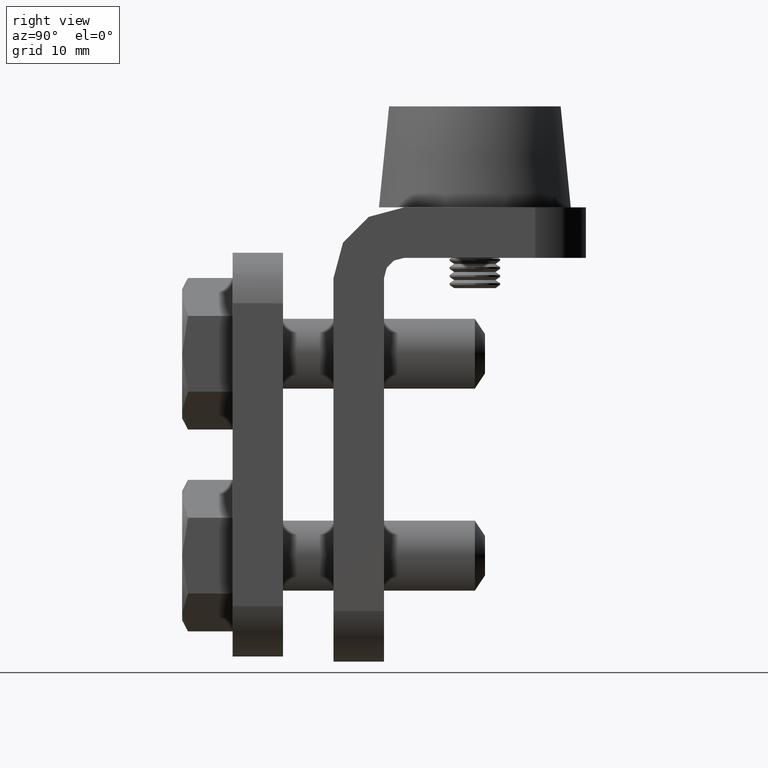
[diagram: clean part render]
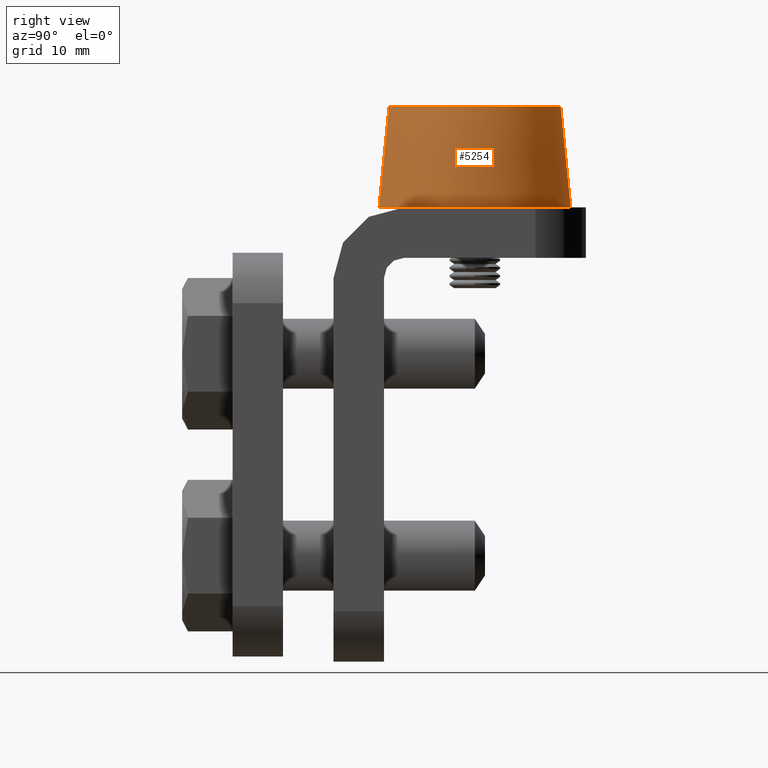
[diagram: same view with one face highlighted and labeled with its STEP entity id]
A machine part, right view. The second image highlights one B-rep face of the part: STEP entity #5254.
In plain terms, the highlighted conical surface has half-angle 5.711 deg.
Its self-contained STEP definition (entity closure, byte-faithful):
#82 = LINE ( 'NONE', #9478, #6725 ) ;
#476 = CARTESIAN_POINT ( 'NONE',  ( 2.225765192706795818E-14, 0.000000000000000000, 9.500000000000000000 ) ) ;
#524 = EDGE_LOOP ( 'NONE', ( #9923, #3845, #6216, #14675 ) ) ;
#789 = CARTESIAN_POINT ( 'NONE',  ( 0.000000000000000000, 10.00000000000000178, 0.000000000000000000 ) ) ;
#899 = DIRECTION ( 'NONE',  ( 0.000000000000000000, -1.000000000000000000, 0.000000000000000000 ) ) ;
#1074 = LINE ( 'NONE', #2941, #16155 ) ;
#2076 = VERTEX_POINT ( 'NONE', #10729 ) ;
#2149 = DIRECTION ( 'NONE',  ( 0.000000000000000000, -1.000000000000000000, 0.000000000000000000 ) ) ;
#2941 = CARTESIAN_POINT ( 'NONE',  ( 2.225765192706795818E-14, 0.000000000000000000, 9.500000000000000000 ) ) ;
#3038 = CONICAL_SURFACE ( 'NONE', #12817, 9.500000000000000000, 0.09966865249116210745 ) ;
#3424 = DIRECTION ( 'NONE',  ( -2.220446049250313081E-15, 0.000000000000000000, -1.000000000000000000 ) ) ;
#3566 = DIRECTION ( 'NONE',  ( -2.220446049250313081E-15, 0.000000000000000000, -1.000000000000000000 ) ) ;
#3845 = ORIENTED_EDGE ( 'NONE', *, *, #11143, .T. ) ;
#3857 = AXIS2_PLACEMENT_3D ( 'NONE', #12093, #14806, #3424 ) ;
#4706 = AXIS2_PLACEMENT_3D ( 'NONE', #789, #2149, #3566 ) ;
#5254 = ADVANCED_FACE ( 'NONE', ( #9869 ), #3038, .T. ) ;
#6216 = ORIENTED_EDGE ( 'NONE', *, *, #11555, .T. ) ;
#6458 = CIRCLE ( 'NONE', #3857, 9.500000000000000000 ) ;
#6607 = DIRECTION ( 'NONE',  ( -2.220446049250313081E-15, 0.000000000000000000, -1.000000000000000000 ) ) ;
#6725 = VECTOR ( 'NONE', #13651, 1000.000000000000114 ) ;
#6746 = CIRCLE ( 'NONE', #4706, 8.499999999999998224 ) ;
#9478 = CARTESIAN_POINT ( 'NONE',  ( -2.109423746787797427E-14, 0.000000000000000000, -9.500000000000000000 ) ) ;
#9869 = FACE_OUTER_BOUND ( 'NONE', #524, .T. ) ;
#9923 = ORIENTED_EDGE ( 'NONE', *, *, #15301, .F. ) ;
#10107 = DIRECTION ( 'NONE',  ( 2.331283308861227795E-16, -0.9950371902099890420, 0.09950371902099898469 ) ) ;
#10648 = EDGE_CURVE ( 'NONE', #18136, #2076, #6458, .T. ) ;
#10729 = CARTESIAN_POINT ( 'NONE',  ( -2.109423746787797427E-14, 0.000000000000000000, -9.500000000000000000 ) ) ;
#10801 = VERTEX_POINT ( 'NONE', #13817 ) ;
#10872 = CARTESIAN_POINT ( 'NONE',  ( 0.000000000000000000, 0.000000000000000000, 0.000000000000000000 ) ) ;
#11143 = EDGE_CURVE ( 'NONE', #10801, #11546, #6746, .T. ) ;
#11546 = VERTEX_POINT ( 'NONE', #13711 ) ;
#11555 = EDGE_CURVE ( 'NONE', #11546, #2076, #82, .T. ) ;
#12093 = CARTESIAN_POINT ( 'NONE',  ( 0.000000000000000000, 0.000000000000000000, 0.000000000000000000 ) ) ;
#12817 = AXIS2_PLACEMENT_3D ( 'NONE', #10872, #899, #6607 ) ;
#13651 = DIRECTION ( 'NONE',  ( -2.209426397858904199E-16, -0.9950371902099890420, -0.09950371902099898469 ) ) ;
#13711 = CARTESIAN_POINT ( 'NONE',  ( -1.887379141862765803E-14, 10.00000000000000178, -8.499999999999998224 ) ) ;
#13817 = CARTESIAN_POINT ( 'NONE',  ( 2.108619656248543091E-14, 10.00000000000000178, 8.499999999999998224 ) ) ;
#14675 = ORIENTED_EDGE ( 'NONE', *, *, #10648, .F. ) ;
#14806 = DIRECTION ( 'NONE',  ( 0.000000000000000000, -1.000000000000000000, 0.000000000000000000 ) ) ;
#15301 = EDGE_CURVE ( 'NONE', #10801, #18136, #1074, .T. ) ;
#16155 = VECTOR ( 'NONE', #10107, 1000.000000000000114 ) ;
#18136 = VERTEX_POINT ( 'NONE', #476 ) ;